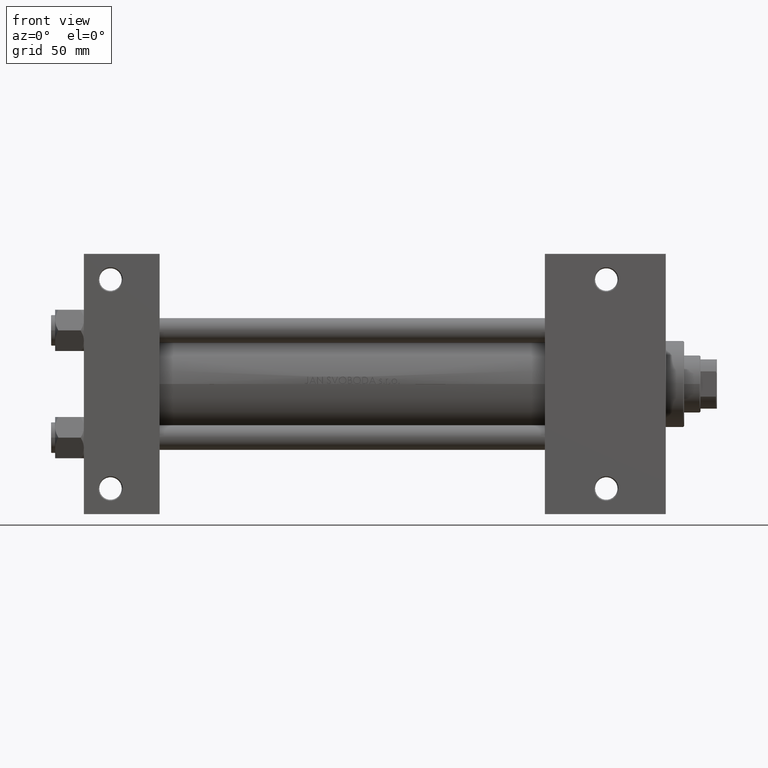
[diagram: clean part render]
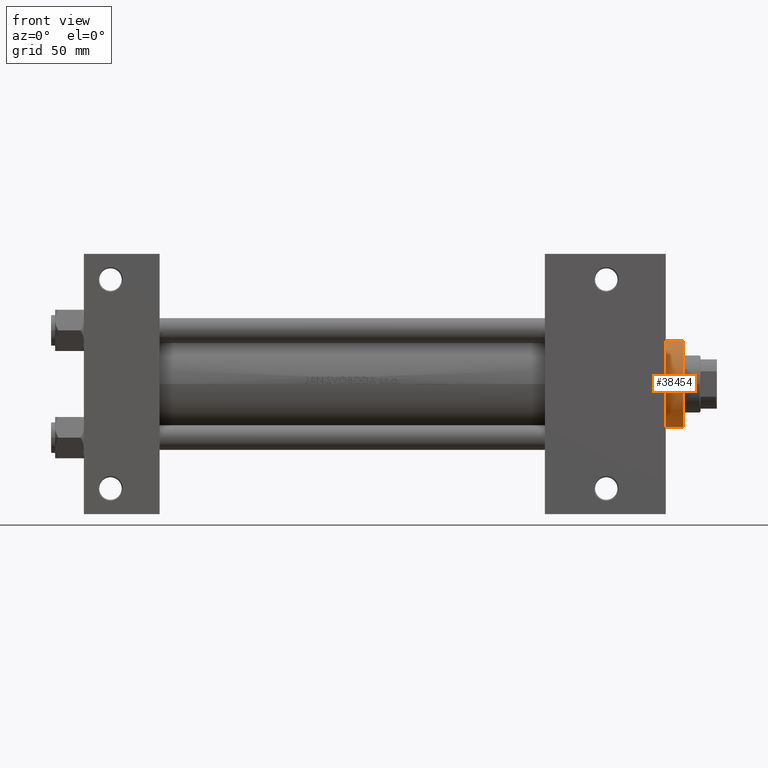
[diagram: same view with one face highlighted and labeled with its STEP entity id]
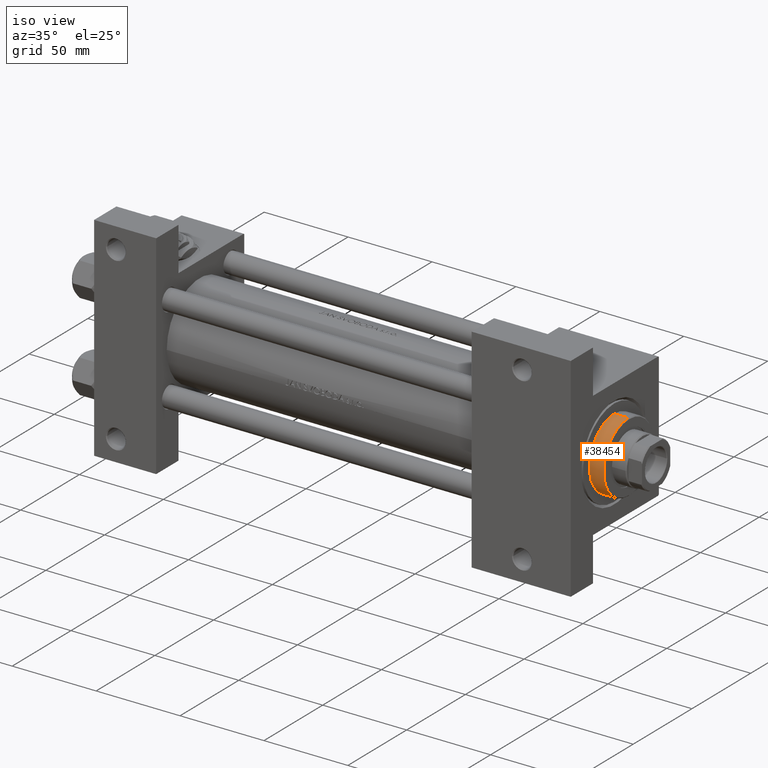
[diagram: same view with one face highlighted and labeled with its STEP entity id]
A machine part, front view. The second image highlights one B-rep face of the part: STEP entity #38454.
A second angle (iso view) of the same face is appended — the face is thin or edge-on in the first view.
In plain terms, the highlighted cylindrical surface (partial cylindrical patch) has radius 21 mm, axis along (-1, -0, 0).
Its self-contained STEP definition (entity closure, byte-faithful):
#624 = CARTESIAN_POINT ( 'NONE',  ( -21.00000000000000000, 0.000000000000000000, 37.69999999999999574 ) ) ;
#1282 = DIRECTION ( 'NONE',  ( -0.000000000000000000, -0.000000000000000000, -1.000000000000000000 ) ) ;
#3020 = FACE_OUTER_BOUND ( 'NONE', #38318, .T. ) ;
#3231 = VECTOR ( 'NONE', #1282, 1000.000000000000000 ) ;
#3277 = CARTESIAN_POINT ( 'NONE',  ( 21.00000000000000000, 2.571758278209441661E-15, 37.19999999999999574 ) ) ;
#3872 = EDGE_CURVE ( 'NONE', #43934, #4081, #46470, .T. ) ;
#4081 = VERTEX_POINT ( 'NONE', #6061 ) ;
#5394 = CARTESIAN_POINT ( 'NONE',  ( 0.000000000000000000, 0.000000000000000000, 28.69999999999999929 ) ) ;
#5959 = CARTESIAN_POINT ( 'NONE',  ( 21.00000000000000000, 2.571758278209441661E-15, 28.69999999999999929 ) ) ;
#6061 = CARTESIAN_POINT ( 'NONE',  ( -21.00000000000000000, 0.000000000000000000, 37.19999999999999574 ) ) ;
#6731 = AXIS2_PLACEMENT_3D ( 'NONE', #26069, #18570, #15541 ) ;
#8675 = ORIENTED_EDGE ( 'NONE', *, *, #22192, .T. ) ;
#8847 = AXIS2_PLACEMENT_3D ( 'NONE', #32270, #9204, #13232 ) ;
#9143 = DIRECTION ( 'NONE',  ( -0.000000000000000000, -0.000000000000000000, -1.000000000000000000 ) ) ;
#9204 = DIRECTION ( 'NONE',  ( 0.000000000000000000, 0.000000000000000000, -1.000000000000000000 ) ) ;
#10518 = ORIENTED_EDGE ( 'NONE', *, *, #3872, .T. ) ;
#11592 = CARTESIAN_POINT ( 'NONE',  ( 21.00000000000000000, 2.571758278209441661E-15, 37.69999999999999574 ) ) ;
#12768 = VERTEX_POINT ( 'NONE', #5959 ) ;
#13232 = DIRECTION ( 'NONE',  ( 1.000000000000000000, 0.000000000000000000, 0.000000000000000000 ) ) ;
#13439 = DIRECTION ( 'NONE',  ( 0.000000000000000000, 0.000000000000000000, 1.000000000000000000 ) ) ;
#13848 = ORIENTED_EDGE ( 'NONE', *, *, #25759, .T. ) ;
#14865 = LINE ( 'NONE', #11592, #3231 ) ;
#15541 = DIRECTION ( 'NONE',  ( -1.000000000000000000, 0.000000000000000000, 0.000000000000000000 ) ) ;
#16361 = VERTEX_POINT ( 'NONE', #34315 ) ;
#16556 = VECTOR ( 'NONE', #9143, 1000.000000000000000 ) ;
#18570 = DIRECTION ( 'NONE',  ( -0.000000000000000000, -0.000000000000000000, -1.000000000000000000 ) ) ;
#19699 = LINE ( 'NONE', #624, #16556 ) ;
#20849 = AXIS2_PLACEMENT_3D ( 'NONE', #5394, #13439, #35991 ) ;
#22192 = EDGE_CURVE ( 'NONE', #4081, #16361, #19699, .T. ) ;
#25759 = EDGE_CURVE ( 'NONE', #16361, #12768, #42464, .T. ) ;
#26069 = CARTESIAN_POINT ( 'NONE',  ( 0.000000000000000000, 0.000000000000000000, 37.69999999999999574 ) ) ;
#27149 = EDGE_CURVE ( 'NONE', #43934, #12768, #14865, .T. ) ;
#32270 = CARTESIAN_POINT ( 'NONE',  ( 0.000000000000000000, 0.000000000000000000, 37.19999999999999574 ) ) ;
#34315 = CARTESIAN_POINT ( 'NONE',  ( -21.00000000000000000, 0.000000000000000000, 28.69999999999999929 ) ) ;
#35991 = DIRECTION ( 'NONE',  ( 1.000000000000000000, 0.000000000000000000, 0.000000000000000000 ) ) ;
#37391 = CYLINDRICAL_SURFACE ( 'NONE', #6731, 21.00000000000000000 ) ;
#38318 = EDGE_LOOP ( 'NONE', ( #40046, #10518, #8675, #13848 ) ) ;
#38454 = ADVANCED_FACE ( 'NONE', ( #3020 ), #37391, .T. ) ;
#40046 = ORIENTED_EDGE ( 'NONE', *, *, #27149, .F. ) ;
#42464 = CIRCLE ( 'NONE', #20849, 21.00000000000000000 ) ;
#43934 = VERTEX_POINT ( 'NONE', #3277 ) ;
#46470 = CIRCLE ( 'NONE', #8847, 21.00000000000000000 ) ;